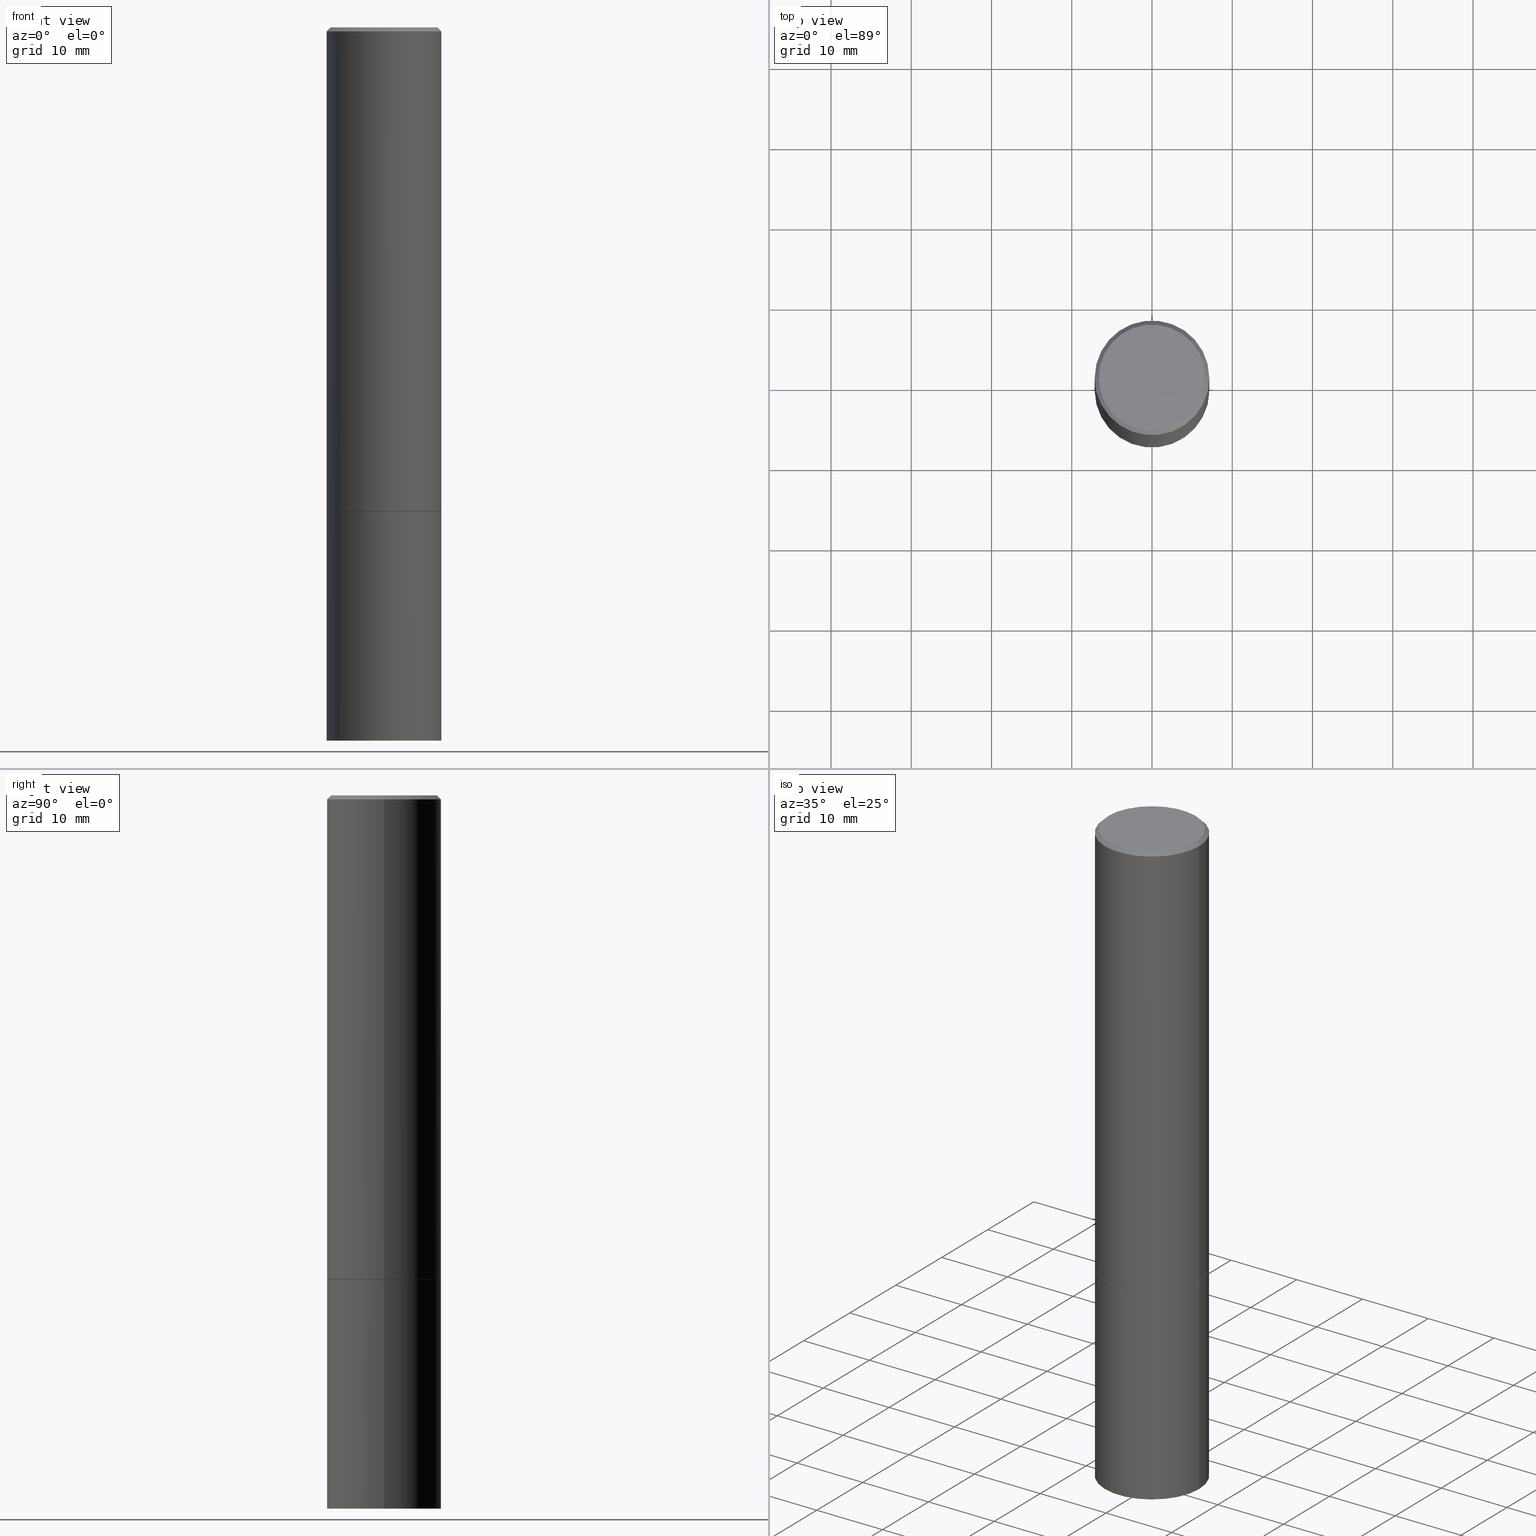
[diagram: canonical four-view strip — front | top / right | iso, engineering-drawing reading convention]
A machine part, canonical four-view strip (front | top / right | iso — engineering-drawing reading convention). The complete STEP part file that produces these views, byte-faithful:
ISO-10303-21;
HEADER;
FILE_DESCRIPTION (( 'STEP AP203' ),
    '1' );
FILE_NAME ('39565.STEP',
    '2024-02-28T00:54:34',
    ( '' ),
    ( '' ),
    'SwSTEP 2.0',
    'SolidWorks 2023',
    '' );
FILE_SCHEMA (( 'CONFIG_CONTROL_DESIGN' ));
ENDSEC;

DATA;
#1 = DESIGN_CONTEXT ( 'detailed design', #316, 'design' ) ;
#2 = ORIENTED_EDGE ( 'NONE', *, *, #355, .T. ) ;
#3 = CIRCLE ( 'NONE', #112, 0.2612499999999997047 ) ;
#4 = DIRECTION ( 'NONE',  ( 1.000000000000000000, -6.982962677686265922E-15, 4.876176775795935793E-29 ) ) ;
#5 = CARTESIAN_POINT ( 'NONE',  ( -0.2812499999999998890, 1.998401444325280984E-15, -1.383450494134191708E-29 ) ) ;
#6 = VECTOR ( 'NONE', #116, 39.37007874015748143 ) ;
#7 = APPROVAL_PERSON_ORGANIZATION ( #133, #339, #103 ) ;
#8 = DIRECTION ( 'NONE',  ( -1.000000000000000000, 6.982962677686266711E-15, 0.000000000000000000 ) ) ;
#9 = ORIENTED_EDGE ( 'NONE', *, *, #235, .F. ) ;
#10 = DIRECTION ( 'NONE',  ( -2.445468806185136877E-29, 3.491481338843145188E-15, 1.000000000000000000 ) ) ;
#11 = ORIENTED_EDGE ( 'NONE', *, *, #348, .T. ) ;
#12 = PERSON_AND_ORGANIZATION ( #253, #121 ) ;
#13 = ORIENTED_EDGE ( 'NONE', *, *, #184, .F. ) ;
#14 = DIRECTION ( 'NONE',  ( 1.000000000000000000, -6.982962677686266711E-15, 4.876176775795935793E-29 ) ) ;
#15 = EDGE_LOOP ( 'NONE', ( #210, #216, #238, #44 ) ) ;
#16 = PERSON_AND_ORGANIZATION ( #253, #121 ) ;
#17 = CYLINDRICAL_SURFACE ( 'NONE', #343, 0.2812500000000000000 ) ;
#18 = ORIENTED_EDGE ( 'NONE', *, *, #184, .T. ) ;
#19 = PERSON_AND_ORGANIZATION ( #253, #121 ) ;
#20 = AXIS2_PLACEMENT_3D ( 'NONE', #203, #260, #143 ) ;
#21 = VECTOR ( 'NONE', #25, 39.37007874015748143 ) ;
#22 = DIRECTION ( 'NONE',  ( -2.445468806185136597E-29, 3.491481338843145583E-15, 1.000000000000000000 ) ) ;
#23 =( NAMED_UNIT ( * ) PLANE_ANGLE_UNIT ( ) SI_UNIT ( $, .RADIAN. ) );
#24 = CARTESIAN_POINT ( 'NONE',  ( 0.2812499999999997780, -1.999344688650104578E-15, -0.02000000000000006981 ) ) ;
#25 = DIRECTION ( 'NONE',  ( -2.445468806185136877E-29, 3.491481338843145188E-15, 1.000000000000000000 ) ) ;
#26 = DIRECTION ( 'NONE',  ( -2.445468806185136597E-29, 3.491481338843145583E-15, 1.000000000000000000 ) ) ;
#27 = EDGE_CURVE ( 'NONE', #252, #233, #293, .T. ) ;
#28 = CC_DESIGN_APPROVAL ( #169, ( #69 ) ) ;
#29 = ORIENTED_EDGE ( 'NONE', *, *, #286, .T. ) ;
#30 = APPROVAL_STATUS ( 'not_yet_approved' ) ;
#31 = CARTESIAN_POINT ( 'NONE',  ( 5.807988414689698296E-29, -8.292268179752468540E-15, -2.374999999999999556 ) ) ;
#32 = DATE_TIME_ROLE ( 'classification_date' ) ;
#33 = DATE_AND_TIME ( #195, #42 ) ;
#34 = DIRECTION ( 'NONE',  ( 1.000000000000000000, -6.982962677686268288E-15, 4.876176775795935793E-29 ) ) ;
#35 = VECTOR ( 'NONE', #365, 39.37007874015748143 ) ;
#36 = AXIS2_PLACEMENT_3D ( 'NONE', #236, #347, #91 ) ;
#37 = EDGE_CURVE ( 'NONE', #270, #182, #364, .T. ) ;
#38 = PLANE ( 'NONE',  #45 ) ;
#39 = CARTESIAN_POINT ( 'NONE',  ( -0.2802499999999999991, -6.300972162784788564E-15, -2.374999999999999556 ) ) ;
#40 = ORIENTED_EDGE ( 'NONE', *, *, #223, .T. ) ;
#41 = CC_DESIGN_DATE_AND_TIME_ASSIGNMENT ( #180, #32, ( #186 ) ) ;
#42 = LOCAL_TIME ( 19, 54, 34.00000000000000000, #85 ) ;
#43 = VERTEX_POINT ( 'NONE', #220 ) ;
#44 = ORIENTED_EDGE ( 'NONE', *, *, #266, .F. ) ;
#45 = AXIS2_PLACEMENT_3D ( 'NONE', #230, #262, #341 ) ;
#46 = CC_DESIGN_APPROVAL ( #63, ( #106 ) ) ;
#47 = ADVANCED_FACE ( 'NONE', ( #56 ), #309, .T. ) ;
#48 = LINE ( 'NONE', #192, #35 ) ;
#49 = CIRCLE ( 'NONE', #234, 0.2812500000000000000 ) ;
#50 = DIRECTION ( 'NONE',  ( -2.445468806185136597E-29, 3.491481338843145583E-15, 1.000000000000000000 ) ) ;
#51 = DIRECTION ( 'NONE',  ( -2.445468806185136597E-29, 3.491481338843145583E-15, 1.000000000000000000 ) ) ;
#52 =( CONVERSION_BASED_UNIT ( 'INCH', #321 ) LENGTH_UNIT ( ) NAMED_UNIT ( #86 ) );
#53 = CARTESIAN_POINT ( 'NONE',  ( 5.805542945883512693E-29, -8.288776698413625533E-15, -2.373999999999999222 ) ) ;
#54 = CARTESIAN_POINT ( 'NONE',  ( 5.805542945883512693E-29, -8.288776698413625533E-15, -2.373999999999999222 ) ) ;
#55 = CIRCLE ( 'NONE', #20, 0.2612499999999997047 ) ;
#56 = FACE_OUTER_BOUND ( 'NONE', #124, .T. ) ;
#57 = FACE_OUTER_BOUND ( 'NONE', #360, .T. ) ;
#58 = CARTESIAN_POINT ( 'NONE',  ( 0.000000000000000000, 0.000000000000000000, 0.000000000000000000 ) ) ;
#59 = EDGE_CURVE ( 'NONE', #110, #182, #48, .T. ) ;
#60 = FACE_OUTER_BOUND ( 'NONE', #90, .T. ) ;
#61 = AXIS2_PLACEMENT_3D ( 'NONE', #68, #50, #273 ) ;
#62 = CALENDAR_DATE ( 2024, 27, 2 ) ;
#63 = APPROVAL ( #199, 'UNSPECIFIED' ) ;
#64 = CARTESIAN_POINT ( 'NONE',  ( 4.890937612370289799E-31, -6.982962677686315028E-17, -0.02000000000000006981 ) ) ;
#65 = AXIS2_PLACEMENT_3D ( 'NONE', #366, #74, #334 ) ;
#66 = FACE_OUTER_BOUND ( 'NONE', #310, .T. ) ;
#67 = DATE_AND_TIME ( #328, #128 ) ;
#68 = CARTESIAN_POINT ( 'NONE',  ( 5.807988414689698296E-29, -8.292268179752468540E-15, -2.374999999999999556 ) ) ;
#69 = PRODUCT_DEFINITION ( 'UNKNOWN', '', #106, #1 ) ;
#70 = ORIENTED_EDGE ( 'NONE', *, *, #315, .T. ) ;
#71 = CARTESIAN_POINT ( 'NONE',  ( 0.2812500000000000000, -1.025622643285173184E-14, -2.374999999999999556 ) ) ;
#72 = EDGE_CURVE ( 'NONE', #182, #270, #105, .T. ) ;
#73 = APPLICATION_PROTOCOL_DEFINITION ( 'international standard', 'config_control_design', 1994, #316 ) ;
#74 = DIRECTION ( 'NONE',  ( 2.438088387897960049E-29, -3.491481338843145188E-15, -1.000000000000000000 ) ) ;
#75 = ORIENTED_EDGE ( 'NONE', *, *, #178, .F. ) ;
#76 = CONICAL_SURFACE ( 'NONE', #342, 0.2802499999999999991, 0.7853981633972946241 ) ;
#77 = DIRECTION ( 'NONE',  ( -0.7071067811865473507, 2.468850131082255088E-15, -0.7071067811865476838 ) ) ;
#78 = DATE_AND_TIME ( #307, #288 ) ;
#79 = DIRECTION ( 'NONE',  ( -2.445468806185136597E-29, 3.491481338843145583E-15, 1.000000000000000000 ) ) ;
#80 = APPROVAL_DATE_TIME ( #78, #339 ) ;
#81 = FACE_OUTER_BOUND ( 'NONE', #156, .T. ) ;
#82 = CONICAL_SURFACE ( 'NONE', #311, 0.2812499999999997780, 0.7853981633974480570 ) ;
#83 = CARTESIAN_POINT ( 'NONE',  ( 1.963958253099320494E-15, 0.2812499999999917288, -2.375000000000000444 ) ) ;
#84 = CARTESIAN_POINT ( 'NONE',  ( -0.2812499999999997780, 1.894128626322398031E-15, -0.02000000000000006981 ) ) ;
#85 = COORDINATED_UNIVERSAL_TIME_OFFSET ( 5, 0, .BEHIND. ) ;
#86 = DIMENSIONAL_EXPONENTS ( 1.000000000000000000, 0.000000000000000000, 0.000000000000000000, 0.000000000000000000, 0.000000000000000000, 0.000000000000000000, 0.000000000000000000 ) ;
#87 = CARTESIAN_POINT ( 'NONE',  ( 0.000000000000000000, 0.000000000000000000, 0.000000000000000000 ) ) ;
#88 = EDGE_CURVE ( 'NONE', #282, #252, #108, .T. ) ;
#89 = PLANE ( 'NONE',  #228 ) ;
#90 = EDGE_LOOP ( 'NONE', ( #9, #264 ) ) ;
#91 = DIRECTION ( 'NONE',  ( 1.000000000000000000, -6.982962677686266711E-15, 0.000000000000000000 ) ) ;
#92 = LINE ( 'NONE', #209, #100 ) ;
#93 = ORIENTED_EDGE ( 'NONE', *, *, #259, .F. ) ;
#94 = AXIS2_PLACEMENT_3D ( 'NONE', #159, #219, #187 ) ;
#95 = DIRECTION ( 'NONE',  ( 2.445468806185136597E-29, -3.491481338843145583E-15, -1.000000000000000000 ) ) ;
#96 = SECURITY_CLASSIFICATION_LEVEL ( 'unclassified' ) ;
#97 = ADVANCED_BREP_SHAPE_REPRESENTATION ( '39565', ( #239, #118, #294 ), #202 ) ;
#98 = COORDINATED_UNIVERSAL_TIME_OFFSET ( 5, 0, .BEHIND. ) ;
#99 = CC_DESIGN_PERSON_AND_ORGANIZATION_ASSIGNMENT ( #269, #123, ( #186 ) ) ;
#100 = VECTOR ( 'NONE', #320, 39.37007874015748143 ) ;
#101 = ORIENTED_EDGE ( 'NONE', *, *, #212, .T. ) ;
#102 = DIRECTION ( 'NONE',  ( 1.000000000000000000, -6.982962677686269866E-15, 0.000000000000000000 ) ) ;
#103 = APPROVAL_ROLE ( '' ) ;
#104 = CARTESIAN_POINT ( 'NONE',  ( 4.890937612370289799E-31, -6.982962677686315028E-17, -0.02000000000000006981 ) ) ;
#105 = CIRCLE ( 'NONE', #127, 0.2812500000000000000 ) ;
#106 = PRODUCT_DEFINITION_FORMATION_WITH_SPECIFIED_SOURCE ( 'ANY', '', #291, .NOT_KNOWN. ) ;
#107 = CC_DESIGN_PERSON_AND_ORGANIZATION_ASSIGNMENT ( #340, #198, ( #69 ) ) ;
#108 = LINE ( 'NONE', #132, #194 ) ;
#109 = VERTEX_POINT ( 'NONE', #225 ) ;
#110 = VERTEX_POINT ( 'NONE', #338 ) ;
#111 = DATE_AND_TIME ( #62, #181 ) ;
#112 = AXIS2_PLACEMENT_3D ( 'NONE', #58, #167, #354 ) ;
#113 = CC_DESIGN_SECURITY_CLASSIFICATION ( #186, ( #106 ) ) ;
#114 = DIRECTION ( 'NONE',  ( -0.7071067811864388819, 7.493145998869961307E-15, 0.7071067811866561525 ) ) ;
#115 = ADVANCED_FACE ( 'NONE', ( #243 ), #240, .T. ) ;
#116 = DIRECTION ( 'NONE',  ( -2.445468806185136877E-29, 3.491481338843145188E-15, 1.000000000000000000 ) ) ;
#117 = EDGE_CURVE ( 'NONE', #189, #110, #49, .T. ) ;
#118 = MANIFOLD_SOLID_BREP ( 'Body-Move/Copy2[2]', #208 ) ;
#119 = CIRCLE ( 'NONE', #172, 0.2812500000000000555 ) ;
#120 = PERSON_AND_ORGANIZATION_ROLE ( 'design_supplier' ) ;
#121 = ORGANIZATION ( 'UNSPECIFIED', 'UNSPECIFIED', '' ) ;
#122 = ORIENTED_EDGE ( 'NONE', *, *, #27, .F. ) ;
#123 = PERSON_AND_ORGANIZATION_ROLE ( 'classification_officer' ) ;
#124 = EDGE_LOOP ( 'NONE', ( #137, #296 ) ) ;
#125 = FACE_OUTER_BOUND ( 'NONE', #15, .T. ) ;
#126 = ORIENTED_EDGE ( 'NONE', *, *, #259, .T. ) ;
#127 = AXIS2_PLACEMENT_3D ( 'NONE', #336, #26, #183 ) ;
#128 = LOCAL_TIME ( 19, 54, 34.00000000000000000, #353 ) ;
#129 = DIRECTION ( 'NONE',  ( 1.000000000000000000, -6.982962677686268288E-15, 0.000000000000000000 ) ) ;
#130 = CARTESIAN_POINT ( 'NONE',  ( 0.2812500000000000000, -1.418414293905027264E-14, -3.500000000000000000 ) ) ;
#131 = CC_DESIGN_PERSON_AND_ORGANIZATION_ASSIGNMENT ( #16, #326, ( #291 ) ) ;
#132 = CARTESIAN_POINT ( 'NONE',  ( -0.2812499999999997780, 1.894128626322398031E-15, -0.02000000000000006981 ) ) ;
#133 = PERSON_AND_ORGANIZATION ( #253, #121 ) ;
#134 = APPLICATION_PROTOCOL_DEFINITION ( 'international standard', 'config_control_design', 1994, #145 ) ;
#135 = DIRECTION ( 'NONE',  ( -2.445468806185136597E-29, 3.491481338843145583E-15, 1.000000000000000000 ) ) ;
#136 = APPROVAL_ROLE ( '' ) ;
#137 = ORIENTED_EDGE ( 'NONE', *, *, #117, .F. ) ;
#138 = ADVANCED_FACE ( 'NONE', ( #81 ), #76, .T. ) ;
#139 = DATE_TIME_ROLE ( 'creation_date' ) ;
#140 = DIRECTION ( 'NONE',  ( 1.000000000000000000, -6.982962677686269077E-15, 0.000000000000000000 ) ) ;
#141 = CIRCLE ( 'NONE', #36, 0.2812499999999997780 ) ;
#142 = CARTESIAN_POINT ( 'NONE',  ( 5.807988414689698296E-29, -8.292268179752468540E-15, -2.374999999999999556 ) ) ;
#143 = DIRECTION ( 'NONE',  ( 1.000000000000000000, -6.982962677686266711E-15, 4.876176775795935793E-29 ) ) ;
#144 = LINE ( 'NONE', #39, #215 ) ;
#145 = APPLICATION_CONTEXT ( 'configuration controlled 3d designs of mechanical parts and assemblies' ) ;
#146 =( LENGTH_UNIT ( ) NAMED_UNIT ( * ) SI_UNIT ( $, .METRE. ) );
#147 = ORIENTED_EDGE ( 'NONE', *, *, #286, .F. ) ;
#148 = EDGE_LOOP ( 'NONE', ( #352, #155 ) ) ;
#149 = PERSON_AND_ORGANIZATION ( #253, #121 ) ;
#150 = AXIS2_PLACEMENT_3D ( 'NONE', #222, #79, #275 ) ;
#151 = EDGE_LOOP ( 'NONE', ( #323, #244, #272, #174 ) ) ;
#152 = CONICAL_SURFACE ( 'NONE', #173, 0.2812499999999997780, 0.7853981633974480570 ) ;
#153 = EDGE_CURVE ( 'NONE', #43, #109, #331, .T. ) ;
#154 = DIRECTION ( 'NONE',  ( -2.445468806185136597E-29, 3.491481338843145583E-15, 1.000000000000000000 ) ) ;
#155 = ORIENTED_EDGE ( 'NONE', *, *, #72, .T. ) ;
#156 = EDGE_LOOP ( 'NONE', ( #211, #101, #327, #318 ) ) ;
#157 = DIRECTION ( 'NONE',  ( 1.000000000000000000, -6.982962677686269077E-15, 0.000000000000000000 ) ) ;
#158 = VECTOR ( 'NONE', #10, 39.37007874015748143 ) ;
#159 = CARTESIAN_POINT ( 'NONE',  ( 0.000000000000000000, 0.000000000000000000, 0.000000000000000000 ) ) ;
#160 = CARTESIAN_POINT ( 'NONE',  ( -0.2812500000000000000, -8.257824988526456379E-15, -2.374999999999999556 ) ) ;
#161 = DIRECTION ( 'NONE',  ( 1.000000000000000000, -6.982962677686268288E-15, 0.000000000000000000 ) ) ;
#162 = ORIENTED_EDGE ( 'NONE', *, *, #200, .T. ) ;
#163 = AXIS2_PLACEMENT_3D ( 'NONE', #87, #314, #34 ) ;
#164 = EDGE_CURVE ( 'NONE', #110, #189, #255, .T. ) ;
#165 = DIRECTION ( 'NONE',  ( 1.000000000000000000, -6.982962677686266711E-15, 0.000000000000000000 ) ) ;
#166 = CYLINDRICAL_SURFACE ( 'NONE', #319, 0.2812499999999998890 ) ;
#167 = DIRECTION ( 'NONE',  ( -2.445468806185136597E-29, 3.491481338843145583E-15, 1.000000000000000000 ) ) ;
#168 = FACE_OUTER_BOUND ( 'NONE', #246, .T. ) ;
#169 = APPROVAL ( #30, 'UNSPECIFIED' ) ;
#170 = LINE ( 'NONE', #5, #6 ) ;
#171 = CARTESIAN_POINT ( 'NONE',  ( 0.2812499999999997780, -1.999344688650104578E-15, -0.02000000000000006981 ) ) ;
#172 = AXIS2_PLACEMENT_3D ( 'NONE', #53, #51, #161 ) ;
#173 = AXIS2_PLACEMENT_3D ( 'NONE', #64, #177, #8 ) ;
#174 = ORIENTED_EDGE ( 'NONE', *, *, #72, .F. ) ;
#175 = CARTESIAN_POINT ( 'NONE',  ( 4.890937612370289799E-31, -6.982962677686315028E-17, -0.02000000000000006981 ) ) ;
#176 = APPROVAL_DATE_TIME ( #67, #63 ) ;
#177 = DIRECTION ( 'NONE',  ( 2.445468806185136597E-29, -3.491481338843145583E-15, -1.000000000000000000 ) ) ;
#178 = EDGE_CURVE ( 'NONE', #109, #43, #119, .T. ) ;
#179 = LINE ( 'NONE', #349, #158 ) ;
#180 = DATE_AND_TIME ( #213, #276 ) ;
#181 = LOCAL_TIME ( 19, 54, 34.00000000000000000, #251 ) ;
#182 = VERTEX_POINT ( 'NONE', #160 ) ;
#183 = DIRECTION ( 'NONE',  ( 1.000000000000000000, -6.982962677686269866E-15, 0.000000000000000000 ) ) ;
#184 = EDGE_CURVE ( 'NONE', #298, #233, #278, .T. ) ;
#185 = DIRECTION ( 'NONE',  ( -2.445468806185136597E-29, 3.491481338843145583E-15, 1.000000000000000000 ) ) ;
#186 = SECURITY_CLASSIFICATION ( '', '', #96 ) ;
#187 = DIRECTION ( 'NONE',  ( 1.000000000000000000, -6.982962677686266711E-15, 4.876176775795935793E-29 ) ) ;
#188 = ORIENTED_EDGE ( 'NONE', *, *, #355, .F. ) ;
#189 = VERTEX_POINT ( 'NONE', #130 ) ;
#190 = ADVANCED_FACE ( 'NONE', ( #289 ), #317, .T. ) ;
#191 = LINE ( 'NONE', #329, #21 ) ;
#192 = CARTESIAN_POINT ( 'NONE',  ( -0.2812500000000000000, 1.998401444325281773E-15, -1.383450494134192269E-29 ) ) ;
#193 = SHAPE_DEFINITION_REPRESENTATION ( #299, #97 ) ;
#194 = VECTOR ( 'NONE', #77, 39.37007874015748143 ) ;
#195 = CALENDAR_DATE ( 2024, 27, 2 ) ;
#196 = CIRCLE ( 'NONE', #61, 0.2802499999999999991 ) ;
#197 = DIRECTION ( 'NONE',  ( -1.000000000000000000, 6.982962677686265922E-15, -4.876176775795935793E-29 ) ) ;
#198 = PERSON_AND_ORGANIZATION_ROLE ( 'creator' ) ;
#199 = APPROVAL_STATUS ( 'not_yet_approved' ) ;
#200 = EDGE_CURVE ( 'NONE', #109, #252, #170, .T. ) ;
#201 = AXIS2_PLACEMENT_3D ( 'NONE', #142, #257, #4 ) ;
#202 =( GEOMETRIC_REPRESENTATION_CONTEXT ( 3 ) GLOBAL_UNCERTAINTY_ASSIGNED_CONTEXT ( ( #301 ) ) GLOBAL_UNIT_ASSIGNED_CONTEXT ( ( #52, #23, #281 ) ) REPRESENTATION_CONTEXT ( 'NONE', 'WORKASPACE' ) );
#203 = CARTESIAN_POINT ( 'NONE',  ( 0.000000000000000000, 0.000000000000000000, 0.000000000000000000 ) ) ;
#204 = DIRECTION ( 'NONE',  ( 2.438088387897960049E-29, -3.491481338843145188E-15, -1.000000000000000000 ) ) ;
#205 = EDGE_LOOP ( 'NONE', ( #13, #250, #268, #241 ) ) ;
#206 = ADVANCED_FACE ( 'NONE', ( #60 ), #258, .F. ) ;
#207 = FACE_OUTER_BOUND ( 'NONE', #205, .T. ) ;
#208 = CLOSED_SHELL ( 'NONE', ( #138, #190, #332, #290, #245, #115, #206, #217 ) ) ;
#209 = CARTESIAN_POINT ( 'NONE',  ( 0.2802499999999999991, -1.024924347017404583E-14, -2.374999999999999556 ) ) ;
#210 = ORIENTED_EDGE ( 'NONE', *, *, #117, .T. ) ;
#211 = ORIENTED_EDGE ( 'NONE', *, *, #235, .T. ) ;
#212 = EDGE_CURVE ( 'NONE', #263, #109, #144, .T. ) ;
#213 = CALENDAR_DATE ( 2024, 27, 2 ) ;
#214 = CARTESIAN_POINT ( 'NONE',  ( -0.2612499999999997047, 1.859213812933966382E-15, -1.288019758893701630E-29 ) ) ;
#215 = VECTOR ( 'NONE', #114, 39.37007874015748143 ) ;
#216 = ORIENTED_EDGE ( 'NONE', *, *, #59, .T. ) ;
#217 = ADVANCED_FACE ( 'NONE', ( #168 ), #38, .F. ) ;
#218 = DIRECTION ( 'NONE',  ( -2.445468806185136597E-29, 3.491481338843145583E-15, 1.000000000000000000 ) ) ;
#219 = DIRECTION ( 'NONE',  ( -2.445468806185136597E-29, 3.491481338843145583E-15, 1.000000000000000000 ) ) ;
#220 = CARTESIAN_POINT ( 'NONE',  ( 0.2812500000000000555, -1.025273495151288883E-14, -2.373999999999999222 ) ) ;
#221 = AXIS2_PLACEMENT_3D ( 'NONE', #363, #135, #303 ) ;
#222 = CARTESIAN_POINT ( 'NONE',  ( 5.807988414689698296E-29, -8.292268179752468540E-15, -2.374999999999999556 ) ) ;
#223 = EDGE_CURVE ( 'NONE', #282, #298, #55, .T. ) ;
#224 = COORDINATED_UNIVERSAL_TIME_OFFSET ( 5, 0, .BEHIND. ) ;
#225 = CARTESIAN_POINT ( 'NONE',  ( -0.2812500000000000555, -2.180901718269960671E-15, -2.373999999999999222 ) ) ;
#226 = PRODUCT_RELATED_PRODUCT_CATEGORY ( 'detail', '', ( #291 ) ) ;
#227 = DIRECTION ( 'NONE',  ( -2.445468806185136597E-29, 3.491481338843145583E-15, 1.000000000000000000 ) ) ;
#228 = AXIS2_PLACEMENT_3D ( 'NONE', #83, #204, #197 ) ;
#229 = ADVANCED_FACE ( 'NONE', ( #346 ), #89, .F. ) ;
#230 = CARTESIAN_POINT ( 'NONE',  ( 1.824298999545535127E-15, 0.2612499999999997047, -9.121494997727707190E-16 ) ) ;
#231 = CC_DESIGN_PERSON_AND_ORGANIZATION_ASSIGNMENT ( #12, #120, ( #106 ) ) ;
#232 = CARTESIAN_POINT ( 'NONE',  ( 0.2612499999999997047, -1.895824895283957597E-15, 1.300802449975685970E-29 ) ) ;
#233 = VERTEX_POINT ( 'NONE', #171 ) ;
#234 = AXIS2_PLACEMENT_3D ( 'NONE', #308, #284, #102 ) ;
#235 = EDGE_CURVE ( 'NONE', #350, #263, #274, .T. ) ;
#236 = CARTESIAN_POINT ( 'NONE',  ( 4.890937612370289799E-31, -6.982962677686315028E-17, -0.02000000000000006981 ) ) ;
#237 = ORIENTED_EDGE ( 'NONE', *, *, #212, .F. ) ;
#238 = ORIENTED_EDGE ( 'NONE', *, *, #37, .F. ) ;
#239 = MANIFOLD_SOLID_BREP ( 'Body-Move/Copy2[1]', #358 ) ;
#240 = CONICAL_SURFACE ( 'NONE', #150, 0.2802499999999999991, 0.7853981633972946241 ) ;
#241 = ORIENTED_EDGE ( 'NONE', *, *, #27, .T. ) ;
#242 = APPROVAL_PERSON_ORGANIZATION ( #345, #63, #313 ) ;
#243 = FACE_OUTER_BOUND ( 'NONE', #302, .T. ) ;
#244 = ORIENTED_EDGE ( 'NONE', *, *, #164, .T. ) ;
#245 = ADVANCED_FACE ( 'NONE', ( #57 ), #166, .T. ) ;
#246 = EDGE_LOOP ( 'NONE', ( #40, #126 ) ) ;
#247 = APPROVAL_STATUS ( 'not_yet_approved' ) ;
#248 = AXIS2_PLACEMENT_3D ( 'NONE', #292, #312, #140 ) ;
#249 = MECHANICAL_CONTEXT ( 'NONE', #145, 'mechanical' ) ;
#250 = ORIENTED_EDGE ( 'NONE', *, *, #223, .F. ) ;
#251 = COORDINATED_UNIVERSAL_TIME_OFFSET ( 5, 0, .BEHIND. ) ;
#252 = VERTEX_POINT ( 'NONE', #84 ) ;
#253 = PERSON ( 'UNSPECIFIED', 'UNSPECIFIED', 'UNSPECIFIED', ('UNSPECIFIED'), ('UNSPECIFIED'), ('UNSPECIFIED') ) ;
#254 = DIRECTION ( 'NONE',  ( -2.445468806185136597E-29, 3.491481338843145583E-15, 1.000000000000000000 ) ) ;
#255 = CIRCLE ( 'NONE', #283, 0.2812500000000000000 ) ;
#256 = APPROVAL_DATE_TIME ( #111, #169 ) ;
#257 = DIRECTION ( 'NONE',  ( -2.438088387897960049E-29, 3.491481338843145188E-15, 1.000000000000000000 ) ) ;
#258 = PLANE ( 'NONE',  #201 ) ;
#259 = EDGE_CURVE ( 'NONE', #298, #282, #3, .T. ) ;
#260 = DIRECTION ( 'NONE',  ( -2.445468806185136597E-29, 3.491481338843145583E-15, 1.000000000000000000 ) ) ;
#261 = AXIS2_PLACEMENT_3D ( 'NONE', #104, #227, #165 ) ;
#262 = DIRECTION ( 'NONE',  ( 2.438088387897960049E-29, -3.491481338843145188E-15, -1.000000000000000000 ) ) ;
#263 = VERTEX_POINT ( 'NONE', #267 ) ;
#264 = ORIENTED_EDGE ( 'NONE', *, *, #348, .F. ) ;
#265 = PERSON_AND_ORGANIZATION_ROLE ( 'creator' ) ;
#266 = EDGE_CURVE ( 'NONE', #189, #270, #179, .T. ) ;
#267 = CARTESIAN_POINT ( 'NONE',  ( -0.2802499999999999991, -6.295673708436565373E-15, -2.374999999999999556 ) ) ;
#268 = ORIENTED_EDGE ( 'NONE', *, *, #88, .T. ) ;
#269 = PERSON_AND_ORGANIZATION ( #253, #121 ) ;
#270 = VERTEX_POINT ( 'NONE', #71 ) ;
#271 = CARTESIAN_POINT ( 'NONE',  ( 0.000000000000000000, 0.000000000000000000, 0.000000000000000000 ) ) ;
#272 = ORIENTED_EDGE ( 'NONE', *, *, #266, .T. ) ;
#273 = DIRECTION ( 'NONE',  ( 1.000000000000000000, -6.982962677686269077E-15, 0.000000000000000000 ) ) ;
#274 = CIRCLE ( 'NONE', #248, 0.2802499999999999991 ) ;
#275 = DIRECTION ( 'NONE',  ( 1.000000000000000000, -6.982962677686269077E-15, 0.000000000000000000 ) ) ;
#276 = LOCAL_TIME ( 19, 54, 34.00000000000000000, #98 ) ;
#277 = CARTESIAN_POINT ( 'NONE',  ( 0.2802499999999999991, -1.024924347017404583E-14, -2.374999999999999556 ) ) ;
#278 = LINE ( 'NONE', #24, #305 ) ;
#279 = DIRECTION ( 'NONE',  ( 0.7071067811865473507, -7.319954787623256045E-15, -0.7071067811865476838 ) ) ;
#280 = ADVANCED_FACE ( 'NONE', ( #351 ), #17, .T. ) ;
#281 =( NAMED_UNIT ( * ) SI_UNIT ( $, .STERADIAN. ) SOLID_ANGLE_UNIT ( ) );
#282 = VERTEX_POINT ( 'NONE', #214 ) ;
#283 = AXIS2_PLACEMENT_3D ( 'NONE', #361, #185, #306 ) ;
#284 = DIRECTION ( 'NONE',  ( -2.445468806185136597E-29, 3.491481338843145583E-15, 1.000000000000000000 ) ) ;
#285 = CARTESIAN_POINT ( 'NONE',  ( 0.000000000000000000, 0.000000000000000000, 0.000000000000000000 ) ) ;
#286 = EDGE_CURVE ( 'NONE', #233, #252, #141, .T. ) ;
#287 = AXIS2_PLACEMENT_3D ( 'NONE', #54, #22, #129 ) ;
#288 = LOCAL_TIME ( 19, 54, 34.00000000000000000, #224 ) ;
#289 = FACE_OUTER_BOUND ( 'NONE', #325, .T. ) ;
#290 = ADVANCED_FACE ( 'NONE', ( #207 ), #152, .T. ) ;
#291 = PRODUCT ( '39565', '39565', '', ( #249 ) ) ;
#292 = CARTESIAN_POINT ( 'NONE',  ( 5.807988414689698296E-29, -8.292268179752468540E-15, -2.374999999999999556 ) ) ;
#293 = CIRCLE ( 'NONE', #261, 0.2812499999999997780 ) ;
#294 = AXIS2_PLACEMENT_3D ( 'NONE', #271, #337, #335 ) ;
#295 = ORIENTED_EDGE ( 'NONE', *, *, #200, .F. ) ;
#296 = ORIENTED_EDGE ( 'NONE', *, *, #164, .F. ) ;
#297 = CARTESIAN_POINT ( 'NONE',  ( 0.000000000000000000, 0.000000000000000000, 0.000000000000000000 ) ) ;
#298 = VERTEX_POINT ( 'NONE', #232 ) ;
#299 = PRODUCT_DEFINITION_SHAPE ( 'NONE', 'NONE',  #69 ) ;
#300 = CC_DESIGN_PERSON_AND_ORGANIZATION_ASSIGNMENT ( #149, #265, ( #106 ) ) ;
#301 = UNCERTAINTY_MEASURE_WITH_UNIT (LENGTH_MEASURE( 1.000000000000000082E-05 ), #52, 'distance_accuracy_value', 'NONE');
#302 = EDGE_LOOP ( 'NONE', ( #237, #11, #70, #75 ) ) ;
#303 = DIRECTION ( 'NONE',  ( 1.000000000000000000, -6.982962677686269866E-15, 0.000000000000000000 ) ) ;
#304 = CYLINDRICAL_SURFACE ( 'NONE', #94, 0.2812500000000000000 ) ;
#305 = VECTOR ( 'NONE', #279, 39.37007874015748143 ) ;
#306 = DIRECTION ( 'NONE',  ( 1.000000000000000000, -6.982962677686269866E-15, 0.000000000000000000 ) ) ;
#307 = CALENDAR_DATE ( 2024, 27, 2 ) ;
#308 = CARTESIAN_POINT ( 'NONE',  ( 8.559140821647976968E-29, -1.222018468595100934E-14, -3.500000000000000000 ) ) ;
#309 = PLANE ( 'NONE',  #65 ) ;
#310 = EDGE_LOOP ( 'NONE', ( #93, #18, #29, #357 ) ) ;
#311 = AXIS2_PLACEMENT_3D ( 'NONE', #175, #95, #322 ) ;
#312 = DIRECTION ( 'NONE',  ( -2.445468806185136597E-29, 3.491481338843145583E-15, 1.000000000000000000 ) ) ;
#313 = APPROVAL_ROLE ( '' ) ;
#314 = DIRECTION ( 'NONE',  ( -2.445468806185136597E-29, 3.491481338843145583E-15, 1.000000000000000000 ) ) ;
#315 = EDGE_CURVE ( 'NONE', #350, #43, #92, .T. ) ;
#316 = APPLICATION_CONTEXT ( 'configuration controlled 3d designs of mechanical parts and assemblies' ) ;
#317 = CYLINDRICAL_SURFACE ( 'NONE', #163, 0.2812499999999998890 ) ;
#318 = ORIENTED_EDGE ( 'NONE', *, *, #315, .F. ) ;
#319 = AXIS2_PLACEMENT_3D ( 'NONE', #285, #254, #344 ) ;
#320 = DIRECTION ( 'NONE',  ( 0.7071067811864388819, -2.468850131081119129E-15, 0.7071067811866561525 ) ) ;
#321 = LENGTH_MEASURE_WITH_UNIT ( LENGTH_MEASURE( 0.02539999999999999897 ), #146 );
#322 = DIRECTION ( 'NONE',  ( -1.000000000000000000, 6.982962677686266711E-15, 0.000000000000000000 ) ) ;
#323 = ORIENTED_EDGE ( 'NONE', *, *, #59, .F. ) ;
#324 = CC_DESIGN_DATE_AND_TIME_ASSIGNMENT ( #33, #139, ( #69 ) ) ;
#325 = EDGE_LOOP ( 'NONE', ( #356, #162, #147, #188 ) ) ;
#326 = PERSON_AND_ORGANIZATION_ROLE ( 'design_owner' ) ;
#327 = ORIENTED_EDGE ( 'NONE', *, *, #153, .F. ) ;
#328 = CALENDAR_DATE ( 2024, 27, 2 ) ;
#329 = CARTESIAN_POINT ( 'NONE',  ( 0.2812499999999998890, -1.963958253099262118E-15, 1.371424718192606451E-29 ) ) ;
#330 = ORIENTED_EDGE ( 'NONE', *, *, #178, .T. ) ;
#331 = CIRCLE ( 'NONE', #287, 0.2812500000000000555 ) ;
#332 = ADVANCED_FACE ( 'NONE', ( #66 ), #82, .T. ) ;
#333 = CC_DESIGN_APPROVAL ( #339, ( #186 ) ) ;
#334 = DIRECTION ( 'NONE',  ( -1.000000000000000000, 6.982962677686265922E-15, -4.876176775795935793E-29 ) ) ;
#335 = DIRECTION ( 'NONE',  ( 1.000000000000000000, 0.000000000000000000, 0.000000000000000000 ) ) ;
#336 = CARTESIAN_POINT ( 'NONE',  ( 5.807988414689698296E-29, -8.292268179752468540E-15, -2.374999999999999556 ) ) ;
#337 = DIRECTION ( 'NONE',  ( 0.000000000000000000, 0.000000000000000000, 1.000000000000000000 ) ) ;
#338 = CARTESIAN_POINT ( 'NONE',  ( -0.2812500000000000000, -8.257824988526456379E-15, -3.500000000000000000 ) ) ;
#339 = APPROVAL ( #247, 'UNSPECIFIED' ) ;
#340 = PERSON_AND_ORGANIZATION ( #253, #121 ) ;
#341 = DIRECTION ( 'NONE',  ( -1.000000000000000000, 6.982962677686265922E-15, -4.876176775795935793E-29 ) ) ;
#342 = AXIS2_PLACEMENT_3D ( 'NONE', #31, #218, #157 ) ;
#343 = AXIS2_PLACEMENT_3D ( 'NONE', #297, #154, #14 ) ;
#344 = DIRECTION ( 'NONE',  ( 1.000000000000000000, -6.982962677686268288E-15, 4.876176775795935793E-29 ) ) ;
#345 = PERSON_AND_ORGANIZATION ( #253, #121 ) ;
#346 = FACE_OUTER_BOUND ( 'NONE', #148, .T. ) ;
#347 = DIRECTION ( 'NONE',  ( -2.445468806185136597E-29, 3.491481338843145583E-15, 1.000000000000000000 ) ) ;
#348 = EDGE_CURVE ( 'NONE', #263, #350, #196, .T. ) ;
#349 = CARTESIAN_POINT ( 'NONE',  ( 0.2812500000000000000, -1.963958253099262512E-15, 1.371424718192607012E-29 ) ) ;
#350 = VERTEX_POINT ( 'NONE', #277 ) ;
#351 = FACE_OUTER_BOUND ( 'NONE', #151, .T. ) ;
#352 = ORIENTED_EDGE ( 'NONE', *, *, #37, .T. ) ;
#353 = COORDINATED_UNIVERSAL_TIME_OFFSET ( 5, 0, .BEHIND. ) ;
#354 = DIRECTION ( 'NONE',  ( 1.000000000000000000, -6.982962677686266711E-15, 4.876176775795935793E-29 ) ) ;
#355 = EDGE_CURVE ( 'NONE', #43, #233, #191, .T. ) ;
#356 = ORIENTED_EDGE ( 'NONE', *, *, #153, .T. ) ;
#357 = ORIENTED_EDGE ( 'NONE', *, *, #88, .F. ) ;
#358 = CLOSED_SHELL ( 'NONE', ( #362, #47, #229, #280 ) ) ;
#359 = APPROVAL_PERSON_ORGANIZATION ( #19, #169, #136 ) ;
#360 = EDGE_LOOP ( 'NONE', ( #295, #330, #2, #122 ) ) ;
#361 = CARTESIAN_POINT ( 'NONE',  ( 8.559140821647976968E-29, -1.222018468595100934E-14, -3.500000000000000000 ) ) ;
#362 = ADVANCED_FACE ( 'NONE', ( #125 ), #304, .T. ) ;
#363 = CARTESIAN_POINT ( 'NONE',  ( 5.807988414689698296E-29, -8.292268179752468540E-15, -2.374999999999999556 ) ) ;
#364 = CIRCLE ( 'NONE', #221, 0.2812500000000000000 ) ;
#365 = DIRECTION ( 'NONE',  ( -2.445468806185136877E-29, 3.491481338843145188E-15, 1.000000000000000000 ) ) ;
#366 = CARTESIAN_POINT ( 'NONE',  ( 1.963958253099348104E-15, 0.2812499999999877875, -3.500000000000000888 ) ) ;
ENDSEC;
END-ISO-10303-21;
